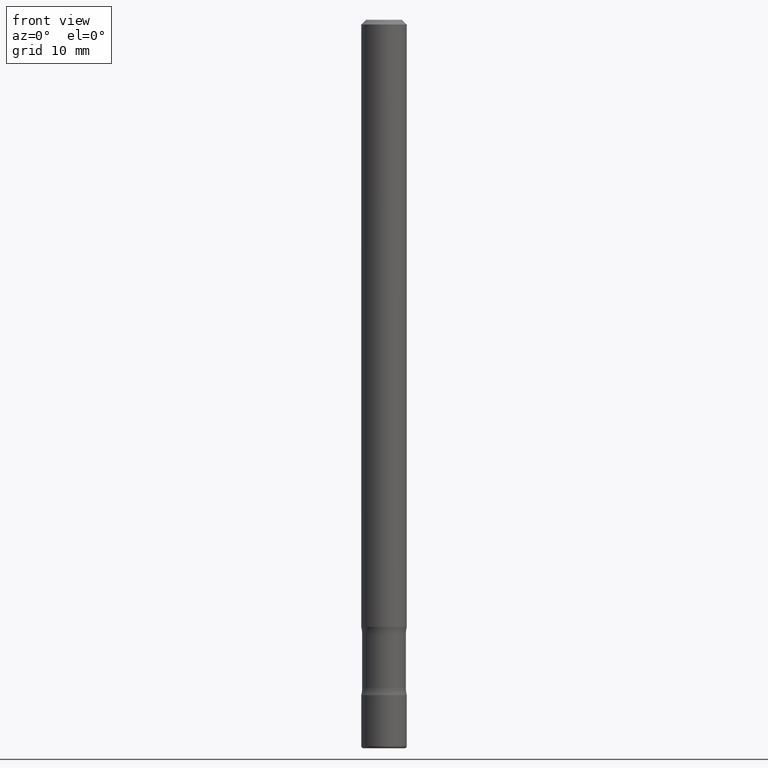
[diagram: clean part render]
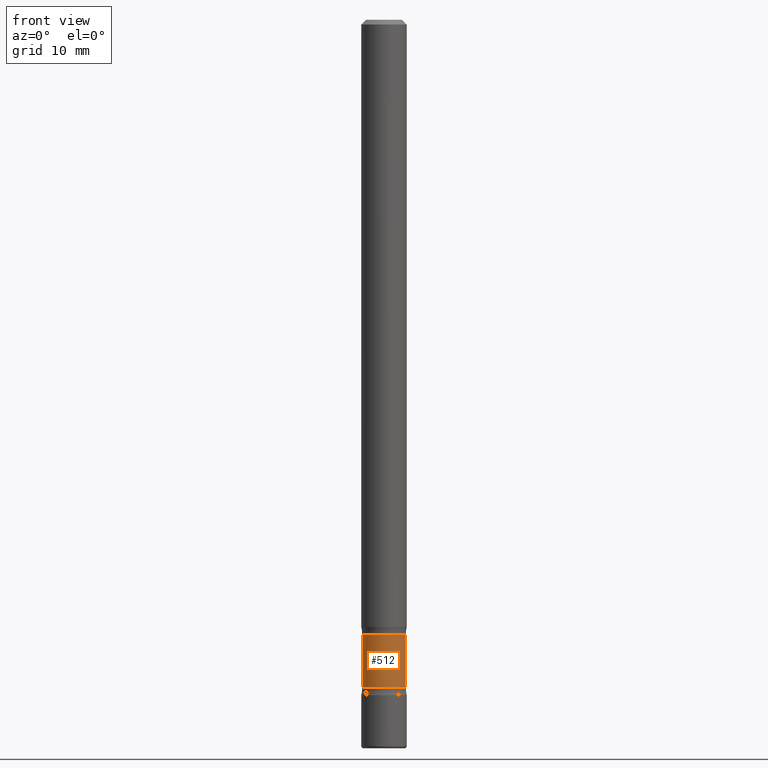
[diagram: same view with one face highlighted and labeled with its STEP entity id]
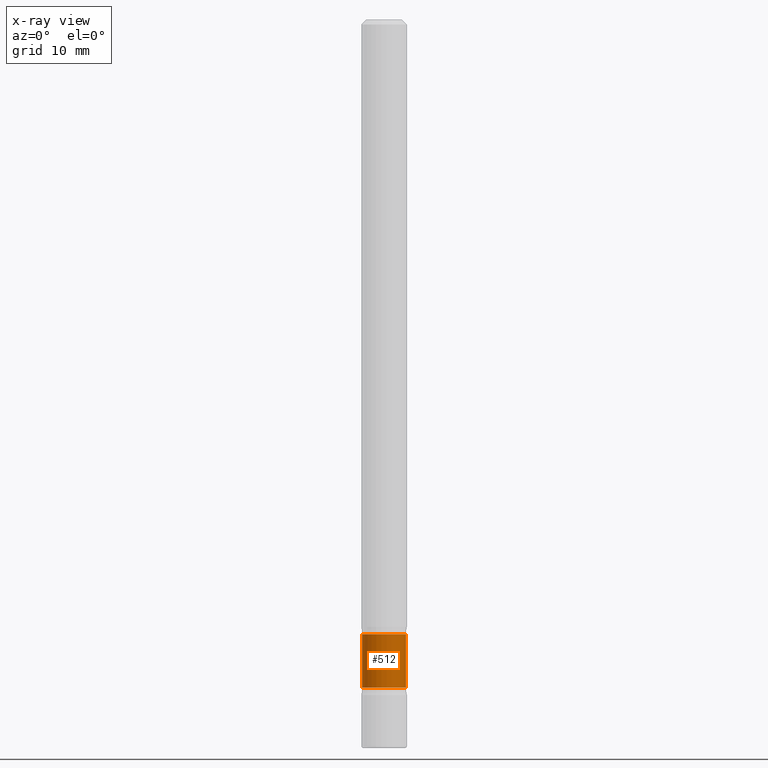
[diagram: x-ray of the same camera — body ghosted, the highlighted face saturated]
A machine part, front view. The second image highlights one B-rep face of the part: STEP entity #512.
The next image is the same camera in x-ray: the body ghosted, the highlighted face saturated — about 0% of this face is hidden behind the body in this view.
In plain terms, the highlighted cylindrical surface (edge-blend (fillet) strip) has radius 2.286 mm, axis along (-0, 0, 1).
Its self-contained STEP definition (entity closure, byte-faithful):
#11 = DIRECTION ( 'NONE',  ( -2.445468806185136597E-29, 3.491481338843145583E-15, 1.000000000000000000 ) ) ;
#17 = VERTEX_POINT ( 'NONE', #740 ) ;
#23 = CARTESIAN_POINT ( 'NONE',  ( 0.08999999999999992728, -1.023287500604753476E-14, -2.750811885547141511 ) ) ;
#81 = CARTESIAN_POINT ( 'NONE',  ( 6.727024657788852023E-29, -9.604408365055771383E-15, -2.750811885547141511 ) ) ;
#83 = ORIENTED_EDGE ( 'NONE', *, *, #210, .T. ) ;
#100 = DIRECTION ( 'NONE',  ( -2.445468806185136877E-29, 3.491481338843145188E-15, 1.000000000000000000 ) ) ;
#117 = CARTESIAN_POINT ( 'NONE',  ( -0.08999999999999989952, -8.128941975895664340E-15, -2.530388114452858606 ) ) ;
#135 = AXIS2_PLACEMENT_3D ( 'NONE', #81, #11, #509 ) ;
#139 = CARTESIAN_POINT ( 'NONE',  ( -0.08999999999999991340, -8.089214884923775785E-15, -2.500000000000000000 ) ) ;
#162 = VERTEX_POINT ( 'NONE', #391 ) ;
#210 = EDGE_CURVE ( 'NONE', #17, #267, #222, .T. ) ;
#222 = CIRCLE ( 'NONE', #135, 0.08999999999999992728 ) ;
#224 = DIRECTION ( 'NONE',  ( 1.000000000000000000, -6.982962677686276177E-15, 0.000000000000000000 ) ) ;
#228 = DIRECTION ( 'NONE',  ( -2.445468806185136877E-29, 3.491481338843145188E-15, 1.000000000000000000 ) ) ;
#267 = VERTEX_POINT ( 'NONE', #23 ) ;
#278 = EDGE_LOOP ( 'NONE', ( #438, #83, #468, #793 ) ) ;
#300 = CYLINDRICAL_SURFACE ( 'NONE', #700, 0.08999999999999991340 ) ;
#331 = DIRECTION ( 'NONE',  ( -2.445468806185136597E-29, 3.491481338843145583E-15, 1.000000000000000000 ) ) ;
#334 = EDGE_CURVE ( 'NONE', #267, #162, #405, .T. ) ;
#360 = DIRECTION ( 'NONE',  ( 1.000000000000000000, -6.982962677686264344E-15, 0.000000000000000000 ) ) ;
#391 = CARTESIAN_POINT ( 'NONE',  ( 0.08999999999999989952, -9.463269522634413348E-15, -2.530388114452858606 ) ) ;
#392 = EDGE_CURVE ( 'NONE', #17, #544, #770, .T. ) ;
#405 = LINE ( 'NONE', #420, #699 ) ;
#420 = CARTESIAN_POINT ( 'NONE',  ( 0.08999999999999991340, -9.357169988099628315E-15, -2.500000000000000000 ) ) ;
#424 = DIRECTION ( 'NONE',  ( -2.445468806185136597E-29, 3.491481338843145583E-15, 1.000000000000000000 ) ) ;
#438 = ORIENTED_EDGE ( 'NONE', *, *, #392, .F. ) ;
#468 = ORIENTED_EDGE ( 'NONE', *, *, #334, .T. ) ;
#485 = CARTESIAN_POINT ( 'NONE',  ( 6.113672015462842613E-29, -8.728703347107864943E-15, -2.500000000000000000 ) ) ;
#509 = DIRECTION ( 'NONE',  ( 1.000000000000000000, -6.982962677686273810E-15, 0.000000000000000000 ) ) ;
#512 = ADVANCED_FACE ( 'NONE', ( #801 ), #300, .T. ) ;
#544 = VERTEX_POINT ( 'NONE', #117 ) ;
#581 = AXIS2_PLACEMENT_3D ( 'NONE', #701, #331, #224 ) ;
#585 = VECTOR ( 'NONE', #100, 39.37007874015748143 ) ;
#699 = VECTOR ( 'NONE', #228, 39.37007874015748143 ) ;
#700 = AXIS2_PLACEMENT_3D ( 'NONE', #485, #424, #360 ) ;
#701 = CARTESIAN_POINT ( 'NONE',  ( 6.187985201436090676E-29, -8.834802881642648397E-15, -2.530388114452858606 ) ) ;
#737 = CIRCLE ( 'NONE', #581, 0.08999999999999989952 ) ;
#740 = CARTESIAN_POINT ( 'NONE',  ( -0.08999999999999992728, -9.004646993843572358E-15, -2.750811885547141511 ) ) ;
#770 = LINE ( 'NONE', #139, #585 ) ;
#793 = ORIENTED_EDGE ( 'NONE', *, *, #802, .F. ) ;
#801 = FACE_OUTER_BOUND ( 'NONE', #278, .T. ) ;
#802 = EDGE_CURVE ( 'NONE', #544, #162, #737, .T. ) ;